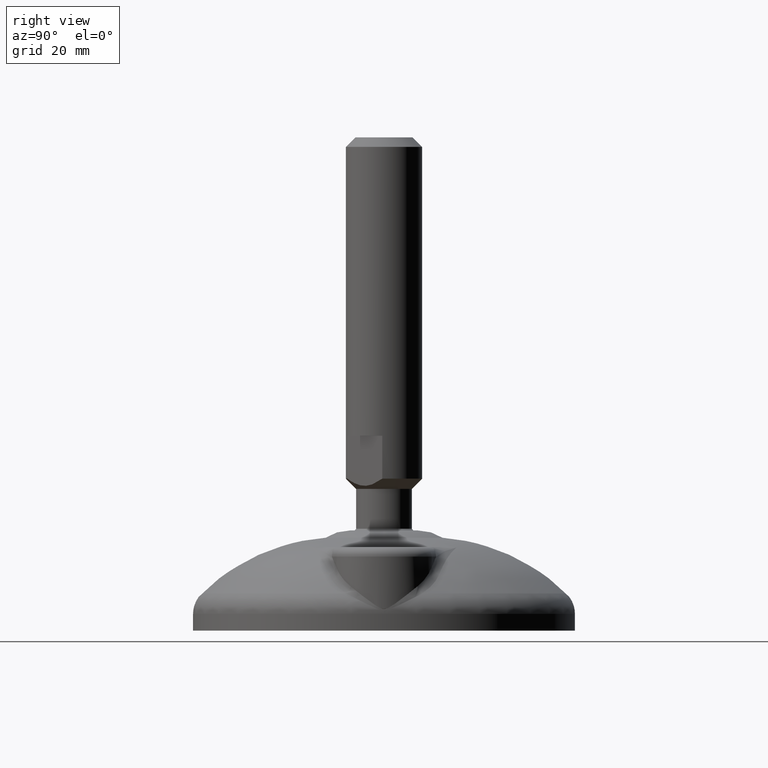
[diagram: clean part render]
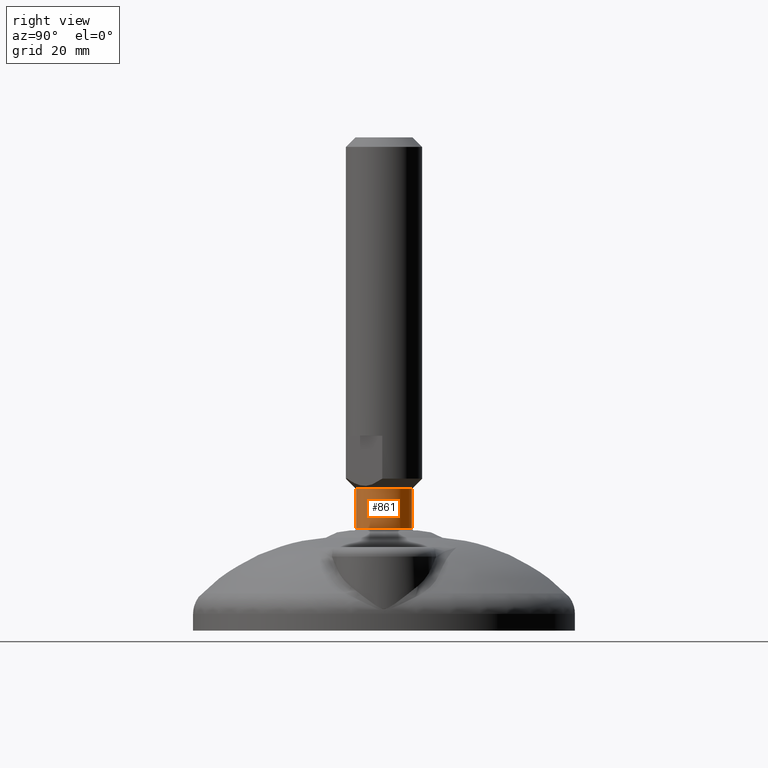
[diagram: same view with one face highlighted and labeled with its STEP entity id]
A machine part, right view. The second image highlights one B-rep face of the part: STEP entity #861.
In plain terms, the highlighted cylindrical surface (bore or boss wall) has radius 5.85 mm, axis along (0, 0, 1).
Its self-contained STEP definition (entity closure, byte-faithful):
#81=CYLINDRICAL_SURFACE('',#969,5.85);
#102=LINE('',#2034,#130);
#130=VECTOR('',#1159,5.85);
#184=FACE_OUTER_BOUND('',#236,.T.);
#236=EDGE_LOOP('',(#705,#706,#707,#708,#709,#710));
#294=CIRCLE('',#966,5.85);
#295=CIRCLE('',#967,5.85);
#297=CIRCLE('',#970,5.85);
#298=CIRCLE('',#971,5.85);
#373=VERTEX_POINT('',#2026);
#374=VERTEX_POINT('',#2028);
#375=VERTEX_POINT('',#2033);
#376=VERTEX_POINT('',#2035);
#486=EDGE_CURVE('',#373,#374,#294,.T.);
#487=EDGE_CURVE('',#374,#373,#295,.T.);
#489=EDGE_CURVE('',#373,#375,#102,.T.);
#490=EDGE_CURVE('',#375,#376,#297,.T.);
#491=EDGE_CURVE('',#376,#375,#298,.T.);
#705=ORIENTED_EDGE('',*,*,#487,.F.);
#706=ORIENTED_EDGE('',*,*,#486,.F.);
#707=ORIENTED_EDGE('',*,*,#489,.T.);
#708=ORIENTED_EDGE('',*,*,#490,.T.);
#709=ORIENTED_EDGE('',*,*,#491,.T.);
#710=ORIENTED_EDGE('',*,*,#489,.F.);
#861=ADVANCED_FACE('',(#184),#81,.T.);
#966=AXIS2_PLACEMENT_3D('',#2029,#1151,#1152);
#967=AXIS2_PLACEMENT_3D('',#2030,#1153,#1154);
#969=AXIS2_PLACEMENT_3D('',#2032,#1157,#1158);
#970=AXIS2_PLACEMENT_3D('',#2036,#1160,#1161);
#971=AXIS2_PLACEMENT_3D('',#2037,#1162,#1163);
#1151=DIRECTION('center_axis',(0.,0.,1.));
#1152=DIRECTION('ref_axis',(0.619686886527591,0.784849133697515,0.));
#1153=DIRECTION('center_axis',(0.,0.,1.));
#1154=DIRECTION('ref_axis',(0.619686886527591,0.784849133697515,0.));
#1157=DIRECTION('center_axis',(0.,0.,1.));
#1158=DIRECTION('ref_axis',(-0.619686886527591,-0.784849133697515,0.));
#1159=DIRECTION('',(0.,0.,-1.));
#1160=DIRECTION('center_axis',(0.,0.,1.));
#1161=DIRECTION('ref_axis',(0.619686886527591,0.784849133697515,0.));
#1162=DIRECTION('center_axis',(0.,0.,1.));
#1163=DIRECTION('ref_axis',(0.619686886527591,0.784849133697515,0.));
#2026=CARTESIAN_POINT('',(3.62516828618641,4.59136743213046,26.1894078691071));
#2028=CARTESIAN_POINT('',(-3.62516828618641,-4.59136743213046,26.1894078691071));
#2029=CARTESIAN_POINT('Origin',(4.81265246241225E-16,4.81265246241225E-16,
26.1894078691071));
#2030=CARTESIAN_POINT('Origin',(4.81265246241225E-16,4.81265246241225E-16,
26.1894078691071));
#2032=CARTESIAN_POINT('Origin',(4.81265246241225E-16,4.81265246241225E-16,
22.0144078691071));
#2033=CARTESIAN_POINT('',(3.62516828618641,4.59136743213047,17.8394078691071));
#2034=CARTESIAN_POINT('',(3.62516828618641,4.59136743213047,22.0144078691071));
#2035=CARTESIAN_POINT('',(-3.62516828618641,-4.59136743213046,17.8394078691071));
#2036=CARTESIAN_POINT('Origin',(4.81265246241225E-16,4.81265246241225E-16,
17.8394078691071));
#2037=CARTESIAN_POINT('Origin',(4.81265246241225E-16,4.81265246241225E-16,
17.8394078691071));